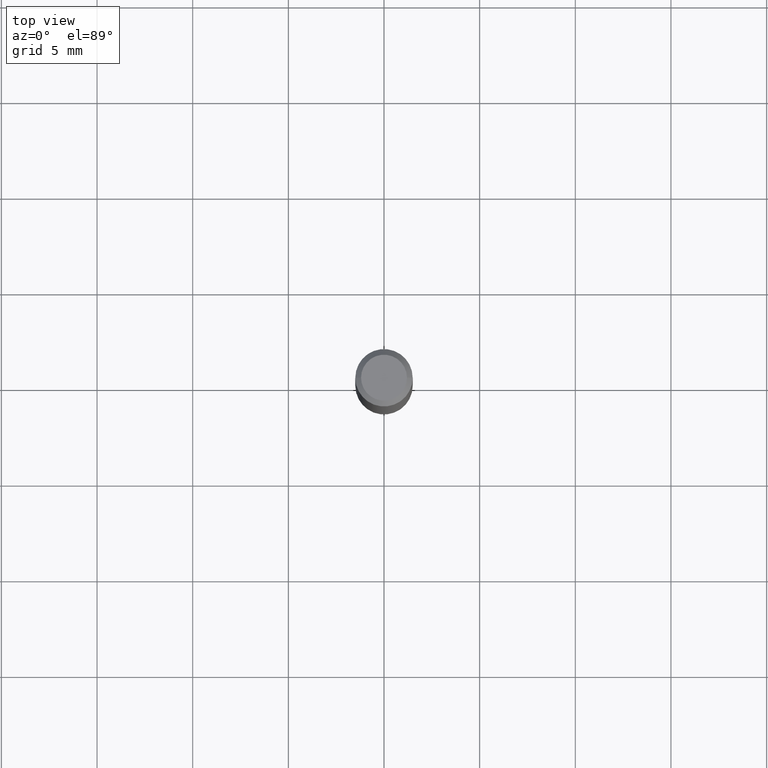
[diagram: clean part render]
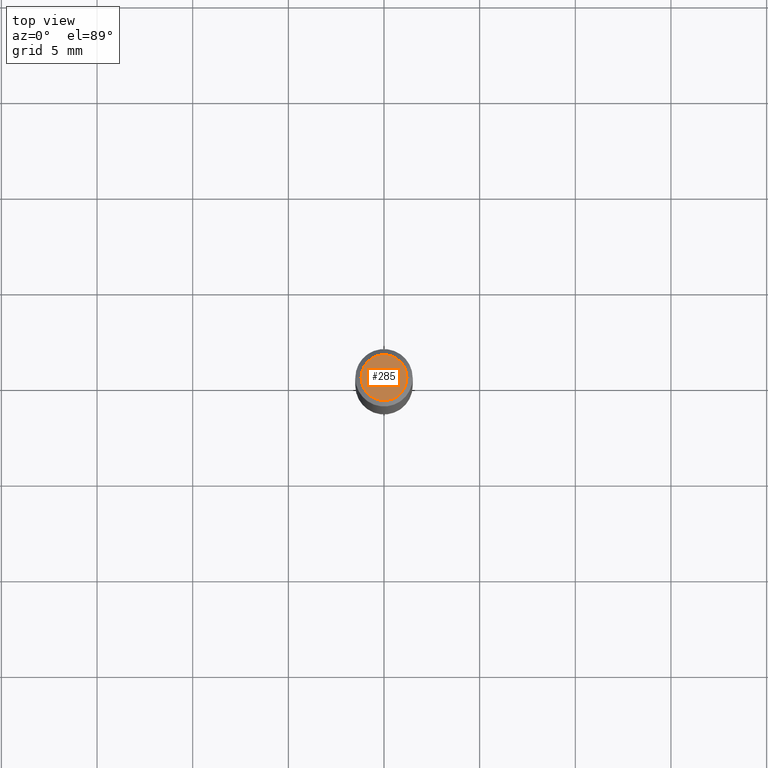
[diagram: same view with one face highlighted and labeled with its STEP entity id]
A machine part, top view. The second image highlights one B-rep face of the part: STEP entity #285.
In plain terms, the highlighted planar face has unit normal (0, -0, -1).
Its self-contained STEP definition (entity closure, byte-faithful):
#7 = EDGE_CURVE ( 'NONE', #144, #331, #61, .T. ) ;
#18 = DIRECTION ( 'NONE',  ( -1.000000000000000000, 6.982962677686265922E-15, -4.876176775795935793E-29 ) ) ;
#24 = DIRECTION ( 'NONE',  ( 2.438088387897960049E-29, -3.491481338843145188E-15, -1.000000000000000000 ) ) ;
#61 = CIRCLE ( 'NONE', #91, 0.04724000000000000421 ) ;
#65 = ORIENTED_EDGE ( 'NONE', *, *, #7, .T. ) ;
#78 = CARTESIAN_POINT ( 'NONE',  ( 8.265746106709734507E-48, -1.180129479067563789E-33, -3.380025165646692144E-19 ) ) ;
#86 = DIRECTION ( 'NONE',  ( -2.445468806185136597E-29, 3.491481338843145583E-15, 1.000000000000000000 ) ) ;
#91 = AXIS2_PLACEMENT_3D ( 'NONE', #78, #86, #232 ) ;
#96 = EDGE_CURVE ( 'NONE', #331, #144, #155, .T. ) ;
#113 = CARTESIAN_POINT ( 'NONE',  ( 0.04724000000000000421, -3.852183633974369838E-16, -3.380025165621689721E-19 ) ) ;
#144 = VERTEX_POINT ( 'NONE', #457 ) ;
#155 = CIRCLE ( 'NONE', #425, 0.04724000000000000421 ) ;
#215 = FACE_OUTER_BOUND ( 'NONE', #474, .T. ) ;
#232 = DIRECTION ( 'NONE',  ( 1.000000000000000000, -6.982962677686266711E-15, 4.876185090822587894E-29 ) ) ;
#265 = CARTESIAN_POINT ( 'NONE',  ( 8.265746106709734507E-48, -1.180129479067563789E-33, -3.380025165646692144E-19 ) ) ;
#285 = ADVANCED_FACE ( 'NONE', ( #215 ), #366, .F. ) ;
#310 = DIRECTION ( 'NONE',  ( 1.000000000000000000, -6.982962677686266711E-15, 4.876185090822587894E-29 ) ) ;
#316 = ORIENTED_EDGE ( 'NONE', *, *, #96, .T. ) ;
#331 = VERTEX_POINT ( 'NONE', #113 ) ;
#366 = PLANE ( 'NONE',  #441 ) ;
#387 = DIRECTION ( 'NONE',  ( -2.445468806185136597E-29, 3.491481338843145583E-15, 1.000000000000000000 ) ) ;
#390 = CARTESIAN_POINT ( 'NONE',  ( 4.132873053354867254E-48, -5.900647395337818946E-34, -1.690012582823346072E-19 ) ) ;
#425 = AXIS2_PLACEMENT_3D ( 'NONE', #265, #387, #310 ) ;
#441 = AXIS2_PLACEMENT_3D ( 'NONE', #390, #24, #18 ) ;
#457 = CARTESIAN_POINT ( 'NONE',  ( -0.04724000000000000421, 3.504923541997677355E-16, -3.380025165670481712E-19 ) ) ;
#474 = EDGE_LOOP ( 'NONE', ( #65, #316 ) ) ;